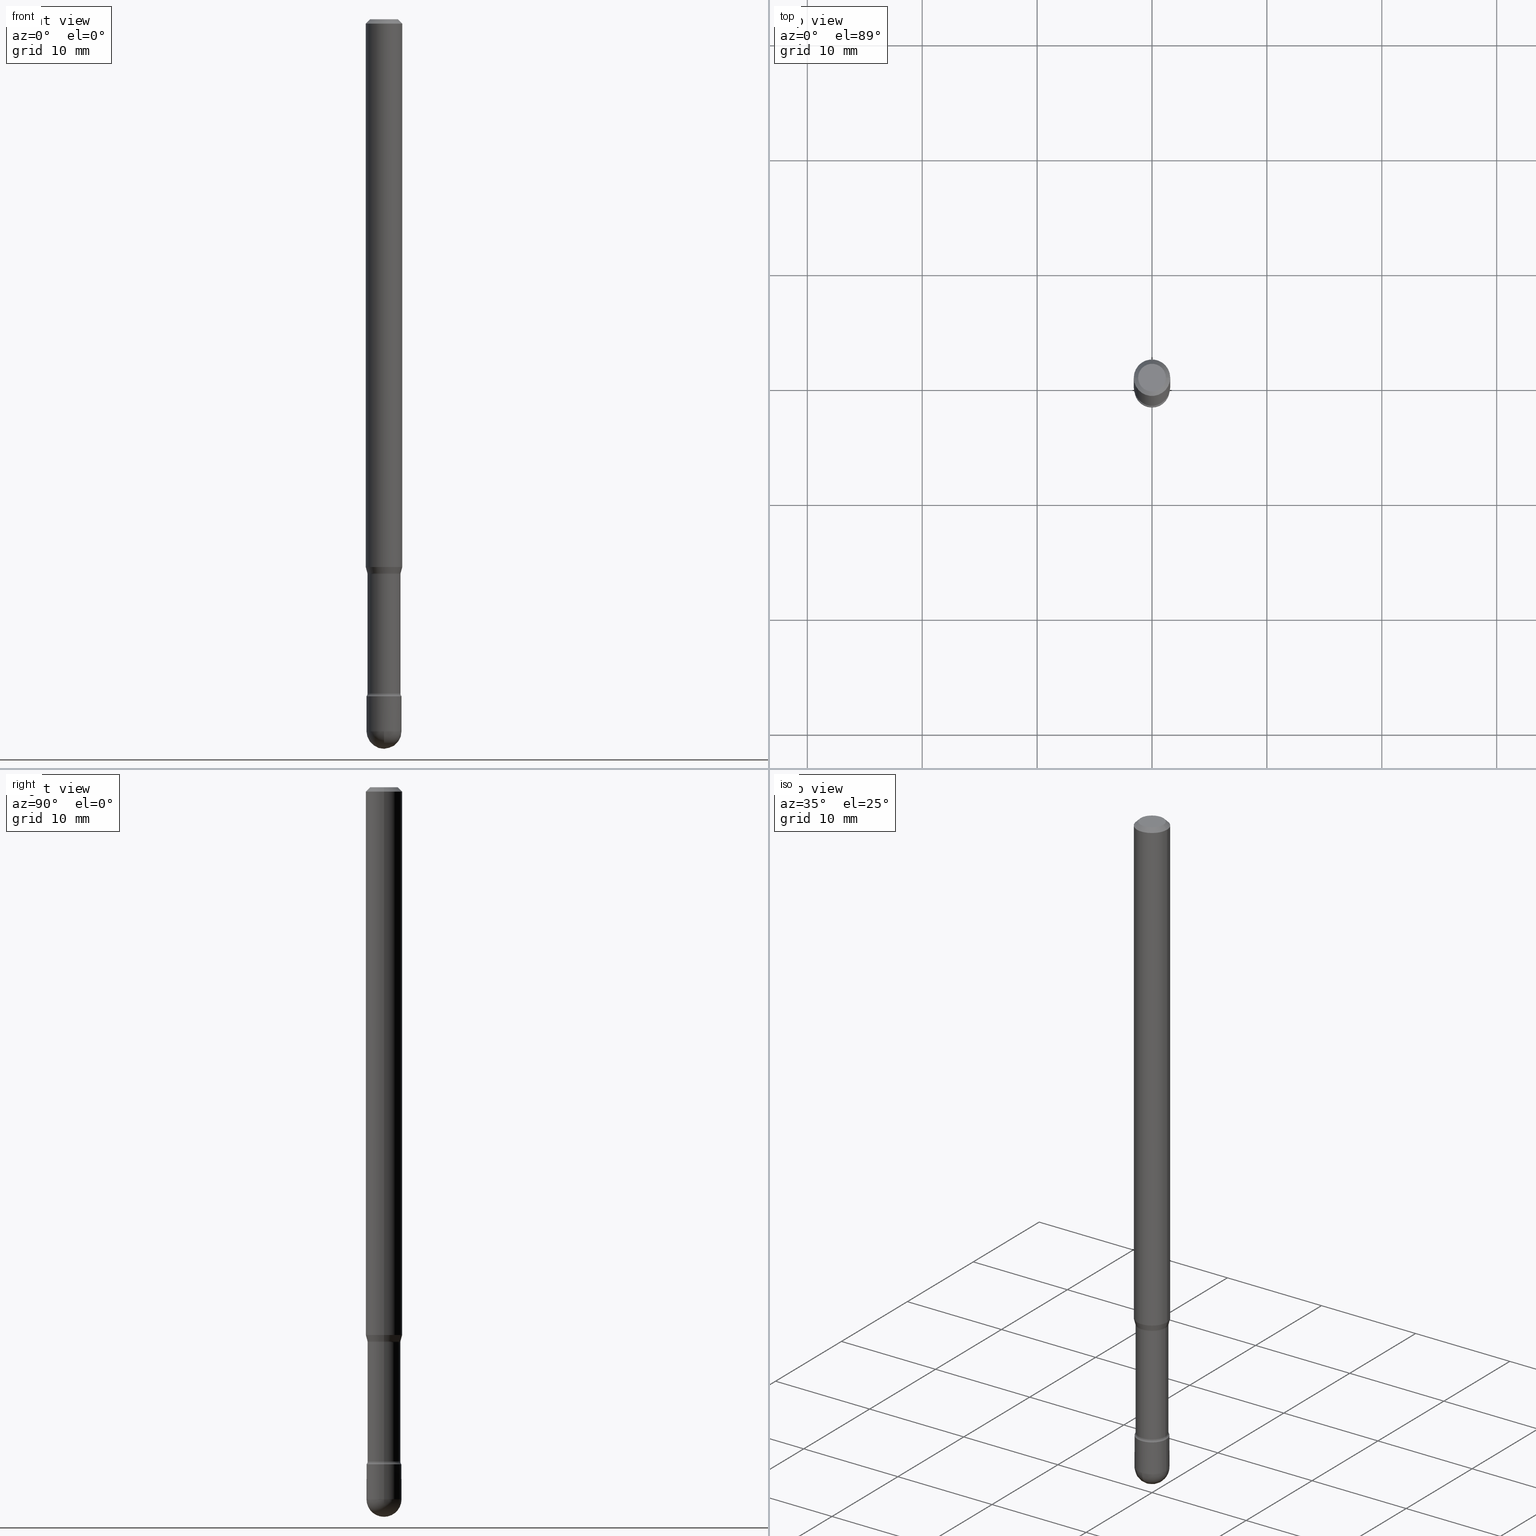
[diagram: canonical four-view strip — front | top / right | iso, engineering-drawing reading convention]
A machine part, canonical four-view strip (front | top / right | iso — engineering-drawing reading convention). The complete STEP part file that produces these views, byte-faithful:
ISO-10303-21;
HEADER;
FILE_DESCRIPTION (( 'STEP AP203' ),
    '1' );
FILE_NAME ('09593.STEP',
    '2024-04-10T01:14:05',
    ( '' ),
    ( '' ),
    'SwSTEP 2.0',
    'SolidWorks 2023',
    '' );
FILE_SCHEMA (( 'CONFIG_CONTROL_DESIGN' ));
ENDSEC;

DATA;
#1 = CYLINDRICAL_SURFACE ( 'NONE', #118, 0.05999999999999999084 ) ;
#2 = AXIS2_PLACEMENT_3D ( 'NONE', #25, #432, #85 ) ;
#3 = LOCAL_TIME ( 21, 14, 5.000000000000000000, #547 ) ;
#4 = CARTESIAN_POINT ( 'NONE',  ( 0.04749999999999999362, -4.035134999187581581E-16, -8.274703207154280181E-17 ) ) ;
#5 = CARTESIAN_POINT ( 'NONE',  ( 5.966943887091733341E-29, -8.519214466777275048E-15, -2.440000000000000391 ) ) ;
#6 = DIRECTION ( 'NONE',  ( -2.445468806185136597E-29, 3.491481338843145583E-15, 1.000000000000000000 ) ) ;
#7 = ADVANCED_FACE ( 'NONE', ( #45 ), #1, .T. ) ;
#8 = APPLICATION_CONTEXT ( 'configuration controlled 3d designs of mechanical parts and assemblies' ) ;
#9 = DIRECTION ( 'NONE',  ( 1.000000000000000000, -6.982962677686271444E-15, 4.883557194083115143E-29 ) ) ;
#10 = DIRECTION ( 'NONE',  ( 1.000000000000000000, -6.982962677686269077E-15, 0.000000000000000000 ) ) ;
#11 = TOROIDAL_SURFACE ( 'NONE', #187, 0.07140000000000003288, 0.01500000000000001506 ) ;
#12 = CARTESIAN_POINT ( 'NONE',  ( -1.169113584055446105E-44, 1.669184350826100908E-30, 4.780733988912460139E-16 ) ) ;
#13 = AXIS2_PLACEMENT_3D ( 'NONE', #223, #405, #478 ) ;
#14 = DIRECTION ( 'NONE',  ( -2.445468806185136877E-29, 3.491481338843145188E-15, 1.000000000000000000 ) ) ;
#15 = VERTEX_POINT ( 'NONE', #137 ) ;
#16 = ADVANCED_FACE ( 'NONE', ( #194 ), #554, .F. ) ;
#17 = DIRECTION ( 'NONE',  ( -2.445468806185136597E-29, 3.491481338843145583E-15, 1.000000000000000000 ) ) ;
#18 = PERSON_AND_ORGANIZATION_ROLE ( 'design_owner' ) ;
#19 = VERTEX_POINT ( 'NONE', #296 ) ;
#20 = ADVANCED_FACE ( 'NONE', ( #472 ), #276, .F. ) ;
#21 = CARTESIAN_POINT ( 'NONE',  ( 5.966943887091733341E-29, -8.519214466777275048E-15, -2.440000000000000391 ) ) ;
#22 = CALENDAR_DATE ( 2024, 9, 4 ) ;
#23 = AXIS2_PLACEMENT_3D ( 'NONE', #127, #295, #316 ) ;
#24 = VECTOR ( 'NONE', #270, 39.37007874015748143 ) ;
#25 = CARTESIAN_POINT ( 'NONE',  ( 3.316907271900976096E-16, 0.04749999999999999362, 3.181781981480094004E-17 ) ) ;
#26 = AXIS2_PLACEMENT_3D ( 'NONE', #402, #42, #356 ) ;
#27 = PERSON_AND_ORGANIZATION ( #358, #90 ) ;
#28 = ORIENTED_EDGE ( 'NONE', *, *, #55, .F. ) ;
#29 = COORDINATED_UNIVERSAL_TIME_OFFSET ( 5, 0, .BEHIND. ) ;
#30 = CC_DESIGN_DATE_AND_TIME_ASSIGNMENT ( #268, #411, ( #428 ) ) ;
#31 = VERTEX_POINT ( 'NONE', #255 ) ;
#32 = CALENDAR_DATE ( 2024, 9, 4 ) ;
#33 = CONICAL_SURFACE ( 'NONE', #506, 0.05691111260566397018, 0.2617993877991514062 ) ;
#34 = CC_DESIGN_APPROVAL ( #190, ( #428 ) ) ;
#35 = ORIENTED_EDGE ( 'NONE', *, *, #519, .T. ) ;
#36 = DIRECTION ( 'NONE',  ( 6.982962677686265922E-15, 1.000000000000000000, -4.553079989440442247E-15 ) ) ;
#37 = CARTESIAN_POINT ( 'NONE',  ( 0.05999999999999999084, -4.189777606611759435E-16, 2.925706065477561055E-30 ) ) ;
#38 = ORIENTED_EDGE ( 'NONE', *, *, #353, .T. ) ;
#39 = ORIENTED_EDGE ( 'NONE', *, *, #355, .T. ) ;
#40 = CIRCLE ( 'NONE', #107, 0.06250000000000000000 ) ;
#41 = VECTOR ( 'NONE', #71, 39.37007874015748143 ) ;
#42 = DIRECTION ( 'NONE',  ( 1.000000000000000000, -6.982962677686265922E-15, 4.883557194083112340E-29 ) ) ;
#43 = CC_DESIGN_PERSON_AND_ORGANIZATION_ASSIGNMENT ( #366, #492, ( #423 ) ) ;
#44 = DIRECTION ( 'NONE',  ( 1.000000000000000000, -6.982962677686261977E-15, 0.000000000000000000 ) ) ;
#45 = FACE_OUTER_BOUND ( 'NONE', #426, .T. ) ;
#46 = CARTESIAN_POINT ( 'NONE',  ( 4.641726004374682613E-29, -6.627154549388364967E-15, -1.898092501787273401 ) ) ;
#47 = CIRCLE ( 'NONE', #363, 0.04749999999999999362 ) ;
#48 = ADVANCED_FACE ( 'NONE', ( #346 ), #191, .F. ) ;
#49 = DIRECTION ( 'NONE',  ( 1.000000000000000000, -6.982962677686271444E-15, 4.883557194083115143E-29 ) ) ;
#50 =( LENGTH_UNIT ( ) NAMED_UNIT ( * ) SI_UNIT ( $, .METRE. ) );
#51 = CARTESIAN_POINT ( 'NONE',  ( 0.05640000000000000568, -3.938390950215037776E-16, 4.780733988912487749E-16 ) ) ;
#52 = CARTESIAN_POINT ( 'NONE',  ( 5.649647131350973229E-29, -8.066198791933100712E-15, -2.310251153914436806 ) ) ;
#53 = CARTESIAN_POINT ( 'NONE',  ( -1.169113584055446105E-44, 1.669184350826100908E-30, 4.780733988912460139E-16 ) ) ;
#54 = CARTESIAN_POINT ( 'NONE',  ( -0.05999999999999999084, 4.263256414560600464E-16, -2.951361054152942712E-30 ) ) ;
#55 = EDGE_CURVE ( 'NONE', #410, #445, #47, .T. ) ;
#56 = DIRECTION ( 'NONE',  ( -2.445468806185136597E-29, 3.491481338843145583E-15, 1.000000000000000000 ) ) ;
#57 = AXIS2_PLACEMENT_3D ( 'NONE', #398, #174, #9 ) ;
#58 = AXIS2_PLACEMENT_3D ( 'NONE', #336, #202, #267 ) ;
#59 = CARTESIAN_POINT ( 'NONE',  ( 5.673487630349517039E-29, -8.100236706116099992E-15, -2.320000000000000284 ) ) ;
#60 = ADVANCED_FACE ( 'NONE', ( #135 ), #33, .T. ) ;
#61 = DATE_AND_TIME ( #185, #477 ) ;
#62 = CARTESIAN_POINT ( 'NONE',  ( -1.169113584055446105E-44, 1.669184350826100908E-30, 4.780733988912460139E-16 ) ) ;
#63 = PERSON_AND_ORGANIZATION ( #358, #90 ) ;
#64 = ORIENTED_EDGE ( 'NONE', *, *, #503, .T. ) ;
#65 = CYLINDRICAL_SURFACE ( 'NONE', #415, 0.05640000000000000568 ) ;
#66 = CLOSED_SHELL ( 'NONE', ( #7, #112, #382, #179, #545 ) ) ;
#67 = CIRCLE ( 'NONE', #265, 0.05640000000000001262 ) ;
#68 = EDGE_CURVE ( 'NONE', #19, #114, #40, .T. ) ;
#69 = APPROVAL_ROLE ( '' ) ;
#70 = VERTEX_POINT ( 'NONE', #474 ) ;
#71 = DIRECTION ( 'NONE',  ( -2.445468806185136877E-29, 3.491481338843145188E-15, 1.000000000000000000 ) ) ;
#72 = CARTESIAN_POINT ( 'NONE',  ( 2.023552857353652888E-45, -2.889097183224559242E-31, -8.274703207154537794E-17 ) ) ;
#73 = APPROVAL_ROLE ( '' ) ;
#74 = ORIENTED_EDGE ( 'NONE', *, *, #455, .F. ) ;
#75 = ORIENTED_EDGE ( 'NONE', *, *, #309, .F. ) ;
#76 = VERTEX_POINT ( 'NONE', #168 ) ;
#77 = CIRCLE ( 'NONE', #373, 0.05691111260566397018 ) ;
#78 = ORIENTED_EDGE ( 'NONE', *, *, #385, .T. ) ;
#79 = FACE_OUTER_BOUND ( 'NONE', #534, .T. ) ;
#80 = ADVANCED_FACE ( 'NONE', ( #122 ), #442, .T. ) ;
#81 = DIRECTION ( 'NONE',  ( -2.445468806185136597E-29, 3.491481338843145583E-15, 1.000000000000000000 ) ) ;
#82 = EDGE_LOOP ( 'NONE', ( #376, #513, #64, #487 ) ) ;
#83 = VERTEX_POINT ( 'NONE', #252 ) ;
#84 =( GEOMETRIC_REPRESENTATION_CONTEXT ( 3 ) GLOBAL_UNCERTAINTY_ASSIGNED_CONTEXT ( ( #401 ) ) GLOBAL_UNIT_ASSIGNED_CONTEXT ( ( #542, #454, #314 ) ) REPRESENTATION_CONTEXT ( 'NONE', 'WORKASPACE' ) );
#85 = DIRECTION ( 'NONE',  ( -1.000000000000000000, 6.982962677686265922E-15, -4.876176775795935793E-29 ) ) ;
#86 = EDGE_LOOP ( 'NONE', ( #35, #38, #447, #433 ) ) ;
#87 = CARTESIAN_POINT ( 'NONE',  ( 3.668203209277725232E-31, -5.237222008264747365E-17, -0.01500000000000008271 ) ) ;
#88 = EDGE_CURVE ( 'NONE', #70, #31, #204, .T. ) ;
#89 = LINE ( 'NONE', #166, #341 ) ;
#90 = ORGANIZATION ( 'UNSPECIFIED', 'UNSPECIFIED', '' ) ;
#91 = PLANE ( 'NONE',  #510 ) ;
#92 = CARTESIAN_POINT ( 'NONE',  ( -0.06000000000000001166, -7.883399944990627819E-15, -2.320000000000000284 ) ) ;
#93 = ORIENTED_EDGE ( 'NONE', *, *, #555, .F. ) ;
#94 = DIRECTION ( 'NONE',  ( 1.000000000000000000, -6.982962677686265922E-15, 4.839830652673569521E-29 ) ) ;
#95 = DIRECTION ( 'NONE',  ( -1.000000000000000000, 7.105427357600982137E-15, 0.000000000000000000 ) ) ;
#96 = EDGE_CURVE ( 'NONE', #412, #552, #302, .T. ) ;
#97 = ORIENTED_EDGE ( 'NONE', *, *, #448, .F. ) ;
#98 = CIRCLE ( 'NONE', #422, 0.05640000000000001262 ) ;
#99 = PERSON_AND_ORGANIZATION_ROLE ( 'creator' ) ;
#100 = ORIENTED_EDGE ( 'NONE', *, *, #527, .T. ) ;
#101 = DATE_AND_TIME ( #188, #192 ) ;
#102 = PRODUCT_DEFINITION_SHAPE ( 'NONE', 'NONE',  #428 ) ;
#103 = EDGE_LOOP ( 'NONE', ( #106, #159 ) ) ;
#104 = EDGE_CURVE ( 'NONE', #445, #410, #160, .T. ) ;
#105 = PERSON_AND_ORGANIZATION ( #358, #90 ) ;
#106 = ORIENTED_EDGE ( 'NONE', *, *, #413, .F. ) ;
#107 = AXIS2_PLACEMENT_3D ( 'NONE', #244, #390, #291 ) ;
#108 = CIRCLE ( 'NONE', #431, 0.05999999999999999778 ) ;
#109 = ORIENTED_EDGE ( 'NONE', *, *, #248, .T. ) ;
#110 = CARTESIAN_POINT ( 'NONE',  ( 3.668203209277725232E-31, -5.237222008264747365E-17, -0.01500000000000008271 ) ) ;
#111 = LINE ( 'NONE', #37, #277 ) ;
#112 = ADVANCED_FACE ( 'NONE', ( #514 ), #250, .T. ) ;
#113 = CIRCLE ( 'NONE', #143, 0.01500000000000001853 ) ;
#114 = VERTEX_POINT ( 'NONE', #517 ) ;
#115 = ORIENTED_EDGE ( 'NONE', *, *, #273, .T. ) ;
#116 = ADVANCED_FACE ( 'NONE', ( #541 ), #490, .F. ) ;
#117 = CARTESIAN_POINT ( 'NONE',  ( -0.07139999999999999125, -6.133381964047343886E-15, -1.901974787463811323 ) ) ;
#118 = AXIS2_PLACEMENT_3D ( 'NONE', #123, #294, #564 ) ;
#119 = CIRCLE ( 'NONE', #300, 0.06250000000000000000 ) ;
#120 = ORIENTED_EDGE ( 'NONE', *, *, #455, .T. ) ;
#121 = DIRECTION ( 'NONE',  ( -2.445468806185136877E-29, 3.491481338843145188E-15, 1.000000000000000000 ) ) ;
#122 = FACE_OUTER_BOUND ( 'NONE', #556, .T. ) ;
#123 = CARTESIAN_POINT ( 'NONE',  ( 0.000000000000000000, 0.000000000000000000, 0.000000000000000000 ) ) ;
#124 = DIRECTION ( 'NONE',  ( -2.445468806185136597E-29, 3.491481338843145583E-15, 1.000000000000000000 ) ) ;
#125 = CARTESIAN_POINT ( 'NONE',  ( 5.673487630349517039E-29, -8.100236706116099992E-15, -2.320000000000000284 ) ) ;
#126 = FACE_OUTER_BOUND ( 'NONE', #561, .T. ) ;
#127 = CARTESIAN_POINT ( 'NONE',  ( 5.966943887091733341E-29, -8.519214466777275048E-15, -2.440000000000000391 ) ) ;
#128 = DIRECTION ( 'NONE',  ( -1.000000000000000000, 7.105427357601001070E-15, -4.926315508542082329E-29 ) ) ;
#129 = DIRECTION ( 'NONE',  ( 1.000000000000000000, -6.982962677686259611E-15, 0.000000000000000000 ) ) ;
#130 = AXIS2_PLACEMENT_3D ( 'NONE', #172, #124, #343 ) ;
#131 = AXIS2_PLACEMENT_3D ( 'NONE', #543, #258, #409 ) ;
#132 = FACE_OUTER_BOUND ( 'NONE', #86, .T. ) ;
#133 = DIRECTION ( 'NONE',  ( 7.105427357601001859E-15, 1.000000000000000000, -3.491481338843145583E-15 ) ) ;
#134 = DIRECTION ( 'NONE',  ( -2.445468806185136597E-29, 3.491481338843145583E-15, 1.000000000000000000 ) ) ;
#135 = FACE_OUTER_BOUND ( 'NONE', #282, .T. ) ;
#136 = CARTESIAN_POINT ( 'NONE',  ( -0.05999999999999999778, -7.673911064660039502E-15, -2.320000000000000284 ) ) ;
#137 = CARTESIAN_POINT ( 'NONE',  ( -0.05639999999999999181, -6.952708031687881193E-15, -1.901974787463811323 ) ) ;
#138 = ORIENTED_EDGE ( 'NONE', *, *, #362, .T. ) ;
#139 = APPROVAL_STATUS ( 'not_yet_approved' ) ;
#140 = EDGE_CURVE ( 'NONE', #445, #19, #222, .T. ) ;
#141 = CARTESIAN_POINT ( 'NONE',  ( -0.06250000000000000000, 3.840629472727441958E-16, -0.01500000000000008271 ) ) ;
#142 = CIRCLE ( 'NONE', #254, 0.01500000000000003587 ) ;
#143 = AXIS2_PLACEMENT_3D ( 'NONE', #520, #262, #129 ) ;
#144 = COORDINATED_UNIVERSAL_TIME_OFFSET ( 5, 0, .BEHIND. ) ;
#145 = EDGE_CURVE ( 'NONE', #372, #269, #209, .T. ) ;
#146 = COORDINATED_UNIVERSAL_TIME_OFFSET ( 5, 0, .BEHIND. ) ;
#147 = DATE_AND_TIME ( #368, #485 ) ;
#148 = ORIENTED_EDGE ( 'NONE', *, *, #104, .F. ) ;
#149 = VECTOR ( 'NONE', #169, 39.37007874015748854 ) ;
#150 = CIRCLE ( 'NONE', #466, 0.01500000000000001853 ) ;
#151 = APPROVAL_DATE_TIME ( #232, #479 ) ;
#152 = EDGE_LOOP ( 'NONE', ( #266, #239, #39, #157 ) ) ;
#153 = ADVANCED_FACE ( 'NONE', ( #407 ), #440, .T. ) ;
#154 = ORIENTED_EDGE ( 'NONE', *, *, #406, .T. ) ;
#155 = CARTESIAN_POINT ( 'NONE',  ( 4.189777606612326922E-16, 0.05999999999999190009, -2.320000000000000728 ) ) ;
#156 = ADVANCED_FACE ( 'NONE', ( #132 ), #307, .T. ) ;
#157 = ORIENTED_EDGE ( 'NONE', *, *, #509, .F. ) ;
#158 = DIRECTION ( 'NONE',  ( -2.445468806185136597E-29, 3.491481338843145583E-15, 1.000000000000000000 ) ) ;
#159 = ORIENTED_EDGE ( 'NONE', *, *, #424, .F. ) ;
#160 = CIRCLE ( 'NONE', #130, 0.04749999999999999362 ) ;
#161 = ORIENTED_EDGE ( 'NONE', *, *, #339, .F. ) ;
#162 = CC_DESIGN_PERSON_AND_ORGANIZATION_ASSIGNMENT ( #486, #419, ( #221 ) ) ;
#163 = EDGE_LOOP ( 'NONE', ( #281, #521, #75, #199 ) ) ;
#164 = CARTESIAN_POINT ( 'NONE',  ( -0.05691111260566397018, -6.222776772928569104E-15, -1.898092501787273401 ) ) ;
#165 = CIRCLE ( 'NONE', #299, 0.05999999999999999778 ) ;
#166 = CARTESIAN_POINT ( 'NONE',  ( 0.05691111260566397018, -7.024562724659316419E-15, -1.898092501787273401 ) ) ;
#167 = CIRCLE ( 'NONE', #539, 0.01500000000000003587 ) ;
#168 = CARTESIAN_POINT ( 'NONE',  ( 0.05999999999999999778, -8.519214466777275048E-15, -2.320000000000000284 ) ) ;
#169 = DIRECTION ( 'NONE',  ( -0.2588190451025226269, 5.211531920934557353E-15, 0.9659258262890676461 ) ) ;
#170 = LINE ( 'NONE', #54, #435 ) ;
#171 = LINE ( 'NONE', #347, #334 ) ;
#172 = CARTESIAN_POINT ( 'NONE',  ( 2.023552857353652888E-45, -2.889097183224559242E-31, -8.274703207154537794E-17 ) ) ;
#173 = MANIFOLD_SOLID_BREP ( 'Body-Move/Copy2[2]', #220 ) ;
#174 = DIRECTION ( 'NONE',  ( -2.445468806185136597E-29, 3.491481338843145583E-15, 1.000000000000000000 ) ) ;
#175 = CARTESIAN_POINT ( 'NONE',  ( -4.263256414560001423E-16, -0.06000000000000849792, -2.439999999999999947 ) ) ;
#176 = CARTESIAN_POINT ( 'NONE',  ( -0.04749999999999999362, 3.578768372314208041E-16, -8.274703207154778150E-17 ) ) ;
#177 = AXIS2_PLACEMENT_3D ( 'NONE', #46, #305, #216 ) ;
#178 = EDGE_LOOP ( 'NONE', ( #229, #333, #489, #417 ) ) ;
#179 = ADVANCED_FACE ( 'NONE', ( #532 ), #238, .T. ) ;
#180 = CYLINDRICAL_SURFACE ( 'NONE', #311, 0.05999999999999999084 ) ;
#181 = MECHANICAL_CONTEXT ( 'NONE', #8, 'mechanical' ) ;
#182 = CARTESIAN_POINT ( 'NONE',  ( -0.05999999999999999084, -7.883399944990627819E-15, -2.440000000000000391 ) ) ;
#183 = ORIENTED_EDGE ( 'NONE', *, *, #362, .F. ) ;
#184 = ADVANCED_FACE ( 'NONE', ( #461 ), #288, .T. ) ;
#185 = CALENDAR_DATE ( 2024, 9, 4 ) ;
#186 = ORIENTED_EDGE ( 'NONE', *, *, #345, .T. ) ;
#187 = AXIS2_PLACEMENT_3D ( 'NONE', #278, #158, #320 ) ;
#188 = CALENDAR_DATE ( 2024, 9, 4 ) ;
#189 = DIMENSIONAL_EXPONENTS ( 1.000000000000000000, 0.000000000000000000, 0.000000000000000000, 0.000000000000000000, 0.000000000000000000, 0.000000000000000000, 0.000000000000000000 ) ;
#190 = APPROVAL ( #139, 'UNSPECIFIED' ) ;
#191 = TOROIDAL_SURFACE ( 'NONE', #508, 0.07140000000000003288, 0.01500000000000001506 ) ;
#192 = LOCAL_TIME ( 21, 14, 5.000000000000000000, #144 ) ;
#193 = EDGE_LOOP ( 'NONE', ( #400, #292, #505, #500 ) ) ;
#194 = FACE_OUTER_BOUND ( 'NONE', #103, .T. ) ;
#195 = EDGE_CURVE ( 'NONE', #420, #70, #98, .T. ) ;
#196 = ORIENTED_EDGE ( 'NONE', *, *, #208, .F. ) ;
#197 = DIRECTION ( 'NONE',  ( 1.000000000000000000, -6.982962677686270655E-15, 4.883557194083115143E-29 ) ) ;
#198 = ADVANCED_FACE ( 'NONE', ( #272 ), #65, .T. ) ;
#199 = ORIENTED_EDGE ( 'NONE', *, *, #385, .F. ) ;
#200 = CIRCLE ( 'NONE', #403, 0.06250000000000000000 ) ;
#201 = AXIS2_PLACEMENT_3D ( 'NONE', #303, #399, #10 ) ;
#202 = DIRECTION ( 'NONE',  ( -2.445468806185136597E-29, 3.491481338843145583E-15, 1.000000000000000000 ) ) ;
#203 = APPLICATION_CONTEXT ( 'configuration controlled 3d designs of mechanical parts and assemblies' ) ;
#204 = LINE ( 'NONE', #51, #384 ) ;
#205 = DIRECTION ( 'NONE',  ( 7.105427357601001859E-15, 1.000000000000000000, -3.491481338843145583E-15 ) ) ;
#206 = ADVANCED_FACE ( 'NONE', ( #313 ), #558, .T. ) ;
#207 = DIRECTION ( 'NONE',  ( -2.445468806185136597E-29, 3.491481338843145583E-15, 1.000000000000000000 ) ) ;
#208 = EDGE_CURVE ( 'NONE', #396, #462, #165, .T. ) ;
#209 = CIRCLE ( 'NONE', #451, 0.05999999999999999084 ) ;
#210 = CARTESIAN_POINT ( 'NONE',  ( -0.05691111260566397018, -6.166508376902006345E-15, -1.898092501787273401 ) ) ;
#211 = CIRCLE ( 'NONE', #131, 0.05639999999999999181 ) ;
#212 = DIRECTION ( 'NONE',  ( -2.445468806185136597E-29, 3.491481338843145583E-15, 1.000000000000000000 ) ) ;
#213 = CARTESIAN_POINT ( 'NONE',  ( 3.668203209277725232E-31, -5.237222008264747365E-17, -0.01500000000000008271 ) ) ;
#214 = DIRECTION ( 'NONE',  ( -2.445468806185136597E-29, 3.491481338843145583E-15, 1.000000000000000000 ) ) ;
#215 = DIRECTION ( 'NONE',  ( 1.000000000000000000, -6.982962677686265922E-15, 4.876176775795935793E-29 ) ) ;
#216 = DIRECTION ( 'NONE',  ( 1.000000000000000000, -6.982962677686261977E-15, 0.000000000000000000 ) ) ;
#217 = EDGE_CURVE ( 'NONE', #241, #19, #498, .T. ) ;
#218 = DIRECTION ( 'NONE',  ( 1.000000000000000000, -6.982962677686266711E-15, 4.852736867747366207E-29 ) ) ;
#219 = DIRECTION ( 'NONE',  ( -6.982962677686266711E-15, -1.000000000000000000, 3.491481338843145583E-15 ) ) ;
#220 = CLOSED_SHELL ( 'NONE', ( #20, #290, #279, #206, #156, #60, #184, #153, #80, #116, #16, #48, #198, #249 ) ) ;
#221 = PRODUCT_DEFINITION_FORMATION_WITH_SPECIFIED_SOURCE ( 'ANY', '', #537, .NOT_KNOWN. ) ;
#222 = LINE ( 'NONE', #357, #430 ) ;
#223 = CARTESIAN_POINT ( 'NONE',  ( 4.590718387370413203E-29, -6.554329190725506201E-15, -1.877234490073830253 ) ) ;
#224 = ORIENTED_EDGE ( 'NONE', *, *, #392, .T. ) ;
#225 = LINE ( 'NONE', #141, #24 ) ;
#226 = PERSON_AND_ORGANIZATION ( #358, #90 ) ;
#227 = CARTESIAN_POINT ( 'NONE',  ( 5.649647131350973229E-29, -8.066198791933100712E-15, -2.310251153914436806 ) ) ;
#228 = COORDINATED_UNIVERSAL_TIME_OFFSET ( 5, 0, .BEHIND. ) ;
#229 = ORIENTED_EDGE ( 'NONE', *, *, #242, .F. ) ;
#230 = AXIS2_PLACEMENT_3D ( 'NONE', #383, #335, #488 ) ;
#231 = ORIENTED_EDGE ( 'NONE', *, *, #96, .T. ) ;
#232 = DATE_AND_TIME ( #32, #3 ) ;
#233 = PRODUCT_RELATED_PRODUCT_CATEGORY ( 'detail', '', ( #537 ) ) ;
#234 = CARTESIAN_POINT ( 'NONE',  ( 6.116237514330379097E-29, -8.725029406710421437E-15, -2.500000000000000000 ) ) ;
#235 = ORIENTED_EDGE ( 'NONE', *, *, #424, .T. ) ;
#236 = AXIS2_PLACEMENT_3D ( 'NONE', #5, #128, #544 ) ;
#237 = APPROVAL_PERSON_ORGANIZATION ( #280, #479, #73 ) ;
#238 = SPHERICAL_SURFACE ( 'NONE', #475, 0.05999999999999994921 ) ;
#239 = ORIENTED_EDGE ( 'NONE', *, *, #298, .T. ) ;
#240 = DIRECTION ( 'NONE',  ( -1.000000000000000000, 6.982962677686266711E-15, 0.000000000000000000 ) ) ;
#241 = VERTEX_POINT ( 'NONE', #253 ) ;
#242 = EDGE_CURVE ( 'NONE', #306, #372, #284, .T. ) ;
#243 = ORIENTED_EDGE ( 'NONE', *, *, #283, .F. ) ;
#244 = CARTESIAN_POINT ( 'NONE',  ( 3.668203209277725232E-31, -5.237222008264747365E-17, -0.01500000000000008271 ) ) ;
#245 = DIRECTION ( 'NONE',  ( -2.445468806185136597E-29, 3.491481338843145583E-15, 1.000000000000000000 ) ) ;
#246 = AXIS2_PLACEMENT_3D ( 'NONE', #529, #214, #515 ) ;
#247 = AXIS2_PLACEMENT_3D ( 'NONE', #125, #395, #473 ) ;
#248 = EDGE_CURVE ( 'NONE', #114, #19, #200, .T. ) ;
#249 = ADVANCED_FACE ( 'NONE', ( #439 ), #349, .F. ) ;
#250 = SPHERICAL_SURFACE ( 'NONE', #23, 0.05999999999999994921 ) ;
#251 = DIRECTION ( 'NONE',  ( 1.000000000000000000, -6.982962677686259611E-15, 0.000000000000000000 ) ) ;
#252 = CARTESIAN_POINT ( 'NONE',  ( 0.05691111260566397018, -7.024562724659316419E-15, -1.898092501787273401 ) ) ;
#253 = CARTESIAN_POINT ( 'NONE',  ( 0.06250000000000000000, -6.990764358080897871E-15, -1.877234490073830253 ) ) ;
#254 = AXIS2_PLACEMENT_3D ( 'NONE', #117, #205, #388 ) ;
#255 = CARTESIAN_POINT ( 'NONE',  ( 0.05639999999999999181, -7.034548572401560169E-15, -1.901974787463811323 ) ) ;
#256 = CARTESIAN_POINT ( 'NONE',  ( 5.966943887091733341E-29, -8.519214466777275048E-15, -2.440000000000000391 ) ) ;
#257 = CIRCLE ( 'NONE', #289, 0.05999999999999999778 ) ;
#258 = DIRECTION ( 'NONE',  ( -2.445468806185136597E-29, 3.491481338843145583E-15, 1.000000000000000000 ) ) ;
#259 = CC_DESIGN_PERSON_AND_ORGANIZATION_ASSIGNMENT ( #27, #308, ( #221 ) ) ;
#260 = LENGTH_MEASURE_WITH_UNIT ( LENGTH_MEASURE( 0.02539999999999999897 ), #50 );
#261 = ORIENTED_EDGE ( 'NONE', *, *, #499, .T. ) ;
#262 = DIRECTION ( 'NONE',  ( -6.982962677686266711E-15, -1.000000000000000000, 3.491481338843145583E-15 ) ) ;
#263 = DIRECTION ( 'NONE',  ( -2.445468806185136877E-29, 3.491481338843145188E-15, 1.000000000000000000 ) ) ;
#264 = CARTESIAN_POINT ( 'NONE',  ( 0.000000000000000000, 0.000000000000000000, 0.000000000000000000 ) ) ;
#265 = AXIS2_PLACEMENT_3D ( 'NONE', #52, #397, #251 ) ;
#266 = ORIENTED_EDGE ( 'NONE', *, *, #392, .F. ) ;
#267 = DIRECTION ( 'NONE',  ( 1.000000000000000000, -6.982962677686269077E-15, 0.000000000000000000 ) ) ;
#268 = DATE_AND_TIME ( #22, #394 ) ;
#269 = VERTEX_POINT ( 'NONE', #348 ) ;
#270 = DIRECTION ( 'NONE',  ( -0.7071067811865475727, 2.468850131082257455E-15, -0.7071067811865474617 ) ) ;
#271 = EDGE_LOOP ( 'NONE', ( #536, #243, #365, #115 ) ) ;
#272 = FACE_OUTER_BOUND ( 'NONE', #193, .T. ) ;
#273 = EDGE_CURVE ( 'NONE', #31, #15, #310, .T. ) ;
#274 = PERSON_AND_ORGANIZATION ( #358, #90 ) ;
#275 = ORIENTED_EDGE ( 'NONE', *, *, #309, .T. ) ;
#276 = TOROIDAL_SURFACE ( 'NONE', #516, 0.07139999999999999125, 0.01500000000000002720 ) ;
#277 = VECTOR ( 'NONE', #374, 39.37007874015748143 ) ;
#278 = CARTESIAN_POINT ( 'NONE',  ( 5.649647131350973229E-29, -8.066198791933102290E-15, -2.310251153914437250 ) ) ;
#279 = ADVANCED_FACE ( 'NONE', ( #79 ), #11, .F. ) ;
#280 = PERSON_AND_ORGANIZATION ( #358, #90 ) ;
#281 = ORIENTED_EDGE ( 'NONE', *, *, #380, .F. ) ;
#282 = EDGE_LOOP ( 'NONE', ( #481, #231, #501, #93 ) ) ;
#283 = EDGE_CURVE ( 'NONE', #83, #412, #77, .T. ) ;
#284 = CIRCLE ( 'NONE', #236, 0.05999999999999994921 ) ;
#285 = CC_DESIGN_SECURITY_CLASSIFICATION ( #423, ( #221 ) ) ;
#286 = EDGE_LOOP ( 'NONE', ( #337, #224, #553, #183 ) ) ;
#287 = ORIENTED_EDGE ( 'NONE', *, *, #448, .T. ) ;
#288 = CONICAL_SURFACE ( 'NONE', #230, 0.05691111260566397018, 0.2617993877991514062 ) ;
#289 = AXIS2_PLACEMENT_3D ( 'NONE', #59, #6, #482 ) ;
#290 = ADVANCED_FACE ( 'NONE', ( #126 ), #378, .T. ) ;
#291 = DIRECTION ( 'NONE',  ( 1.000000000000000000, -6.982962677686266711E-15, 0.000000000000000000 ) ) ;
#292 = ORIENTED_EDGE ( 'NONE', *, *, #195, .T. ) ;
#293 = DIRECTION ( 'NONE',  ( 1.000000000000000000, -6.982962677686269077E-15, 0.000000000000000000 ) ) ;
#294 = DIRECTION ( 'NONE',  ( -2.445468806185136597E-29, 3.491481338843145583E-15, 1.000000000000000000 ) ) ;
#295 = DIRECTION ( 'NONE',  ( -1.000000000000000000, 6.982962677686265922E-15, -4.883557194083113462E-29 ) ) ;
#296 = CARTESIAN_POINT ( 'NONE',  ( 0.06250000000000000000, -4.888073874380391431E-16, -0.01500000000000008271 ) ) ;
#297 = DIRECTION ( 'NONE',  ( 1.000000000000000000, -6.982962677686266711E-15, 4.876176775795935793E-29 ) ) ;
#298 = EDGE_CURVE ( 'NONE', #412, #15, #142, .T. ) ;
#299 = AXIS2_PLACEMENT_3D ( 'NONE', #551, #324, #421 ) ;
#300 = AXIS2_PLACEMENT_3D ( 'NONE', #304, #81, #563 ) ;
#301 = DIRECTION ( 'NONE',  ( 1.000000000000000000, -6.982962677686251722E-15, 0.000000000000000000 ) ) ;
#302 = LINE ( 'NONE', #164, #149 ) ;
#303 = CARTESIAN_POINT ( 'NONE',  ( 5.966943887091733341E-29, -8.519214466777275048E-15, -2.440000000000000391 ) ) ;
#304 = CARTESIAN_POINT ( 'NONE',  ( 4.590718387370413203E-29, -6.554329190725506201E-15, -1.877234490073830253 ) ) ;
#305 = DIRECTION ( 'NONE',  ( -2.445468806185136597E-29, 3.491481338843145583E-15, 1.000000000000000000 ) ) ;
#306 = VERTEX_POINT ( 'NONE', #234 ) ;
#307 = CYLINDRICAL_SURFACE ( 'NONE', #340, 0.06250000000000000000 ) ;
#308 = PERSON_AND_ORGANIZATION_ROLE ( 'creator' ) ;
#309 = EDGE_CURVE ( 'NONE', #360, #372, #375, .T. ) ;
#310 = CIRCLE ( 'NONE', #246, 0.05639999999999999181 ) ;
#311 = AXIS2_PLACEMENT_3D ( 'NONE', #264, #444, #297 ) ;
#312 = ORIENTED_EDGE ( 'NONE', *, *, #140, .T. ) ;
#313 = FACE_OUTER_BOUND ( 'NONE', #338, .T. ) ;
#314 =( NAMED_UNIT ( * ) SI_UNIT ( $, .STERADIAN. ) SOLID_ANGLE_UNIT ( ) );
#315 = ORIENTED_EDGE ( 'NONE', *, *, #503, .F. ) ;
#316 = DIRECTION ( 'NONE',  ( 6.982962677686265922E-15, 1.000000000000000000, -4.553079989440442247E-15 ) ) ;
#317 = CC_DESIGN_DATE_AND_TIME_ASSIGNMENT ( #147, #494, ( #423 ) ) ;
#318 = CARTESIAN_POINT ( 'NONE',  ( 4.641726004374682613E-29, -6.627154549388364967E-15, -1.898092501787273401 ) ) ;
#319 = DIRECTION ( 'NONE',  ( 1.000000000000000000, 0.000000000000000000, 0.000000000000000000 ) ) ;
#320 = DIRECTION ( 'NONE',  ( 1.000000000000000000, -6.982962677686270655E-15, 4.883557194083115143E-29 ) ) ;
#321 = AXIS2_PLACEMENT_3D ( 'NONE', #256, #342, #293 ) ;
#322 = ORIENTED_EDGE ( 'NONE', *, *, #88, .F. ) ;
#323 = SHAPE_DEFINITION_REPRESENTATION ( #102, #458 ) ;
#324 = DIRECTION ( 'NONE',  ( -2.445468806185136597E-29, 3.491481338843145583E-15, 1.000000000000000000 ) ) ;
#325 = ORIENTED_EDGE ( 'NONE', *, *, #217, .T. ) ;
#326 = DIRECTION ( 'NONE',  ( -2.445468806185136597E-29, 3.491481338843145583E-15, 1.000000000000000000 ) ) ;
#327 = ORIENTED_EDGE ( 'NONE', *, *, #140, .F. ) ;
#328 = DIRECTION ( 'NONE',  ( -2.438088387897960049E-29, 3.491481338843145188E-15, 1.000000000000000000 ) ) ;
#329 = CARTESIAN_POINT ( 'NONE',  ( 5.649647131350973229E-29, -8.066198791933102290E-15, -2.310251153914437250 ) ) ;
#330 = DIRECTION ( 'NONE',  ( -1.000000000000000000, 6.982962677686265922E-15, -4.883557194083113462E-29 ) ) ;
#331 = ORIENTED_EDGE ( 'NONE', *, *, #273, .F. ) ;
#332 = AXIS2_PLACEMENT_3D ( 'NONE', #87, #429, #437 ) ;
#333 = ORIENTED_EDGE ( 'NONE', *, *, #380, .T. ) ;
#334 = VECTOR ( 'NONE', #14, 39.37007874015748143 ) ;
#335 = DIRECTION ( 'NONE',  ( -2.445468806185136597E-29, 3.491481338843145583E-15, 1.000000000000000000 ) ) ;
#336 = CARTESIAN_POINT ( 'NONE',  ( 5.966943887091733341E-29, -8.519214466777275048E-15, -2.440000000000000391 ) ) ;
#337 = ORIENTED_EDGE ( 'NONE', *, *, #96, .F. ) ;
#338 = EDGE_LOOP ( 'NONE', ( #148, #312, #546, #161 ) ) ;
#339 = EDGE_CURVE ( 'NONE', #410, #114, #225, .T. ) ;
#340 = AXIS2_PLACEMENT_3D ( 'NONE', #53, #17, #218 ) ;
#341 = VECTOR ( 'NONE', #438, 39.37007874015748854 ) ;
#342 = DIRECTION ( 'NONE',  ( -2.445468806185136597E-29, 3.491481338843145583E-15, 1.000000000000000000 ) ) ;
#343 = DIRECTION ( 'NONE',  ( 1.000000000000000000, -6.982962677686267499E-15, 4.884662768193073002E-29 ) ) ;
#344 = CARTESIAN_POINT ( 'NONE',  ( -0.05640000000000001262, -7.669681876812221834E-15, -2.310251153914436806 ) ) ;
#345 = EDGE_CURVE ( 'NONE', #269, #396, #111, .T. ) ;
#346 = FACE_OUTER_BOUND ( 'NONE', #82, .T. ) ;
#347 = CARTESIAN_POINT ( 'NONE',  ( -0.05640000000000000568, 4.007461029686982216E-16, 4.780733988912432529E-16 ) ) ;
#348 = CARTESIAN_POINT ( 'NONE',  ( 0.05999999999999999084, -8.728703347107863365E-15, -2.440000000000000391 ) ) ;
#349 = TOROIDAL_SURFACE ( 'NONE', #57, 0.07139999999999999125, 0.01500000000000002720 ) ;
#350 = CARTESIAN_POINT ( 'NONE',  ( -1.169113584055446105E-44, 1.669184350826100908E-30, 4.780733988912460139E-16 ) ) ;
#351 = CIRCLE ( 'NONE', #177, 0.05691111260566397018 ) ;
#352 = DIRECTION ( 'NONE',  ( -2.445468806185136597E-29, 3.491481338843145583E-15, 1.000000000000000000 ) ) ;
#353 = EDGE_CURVE ( 'NONE', #552, #114, #379, .T. ) ;
#354 = DIRECTION ( 'NONE',  ( 1.000000000000000000, -6.982962677686265922E-15, 4.876176775795935793E-29 ) ) ;
#355 = EDGE_CURVE ( 'NONE', #15, #31, #211, .T. ) ;
#356 = DIRECTION ( 'NONE',  ( 6.982962677686265922E-15, 1.000000000000000000, 0.000000000000000000 ) ) ;
#357 = CARTESIAN_POINT ( 'NONE',  ( 0.06250000000000000000, -4.811533449433681963E-16, -0.01500000000000008271 ) ) ;
#358 = PERSON ( 'UNSPECIFIED', 'UNSPECIFIED', 'UNSPECIFIED', ('UNSPECIFIED'), ('UNSPECIFIED'), ('UNSPECIFIED') ) ;
#359 = APPLICATION_PROTOCOL_DEFINITION ( 'international standard', 'config_control_design', 1994, #203 ) ;
#360 = VERTEX_POINT ( 'NONE', #182 ) ;
#361 = APPROVAL_STATUS ( 'not_yet_approved' ) ;
#362 = EDGE_CURVE ( 'NONE', #552, #241, #119, .T. ) ;
#363 = AXIS2_PLACEMENT_3D ( 'NONE', #72, #387, #467 ) ;
#364 = CIRCLE ( 'NONE', #26, 0.05999999999999994921 ) ;
#365 = ORIENTED_EDGE ( 'NONE', *, *, #509, .T. ) ;
#366 = PERSON_AND_ORGANIZATION ( #358, #90 ) ;
#367 = APPROVAL ( #361, 'UNSPECIFIED' ) ;
#368 = CALENDAR_DATE ( 2024, 9, 4 ) ;
#369 = ORIENTED_EDGE ( 'NONE', *, *, #339, .T. ) ;
#370 = DESIGN_CONTEXT ( 'detailed design', #203, 'design' ) ;
#371 = APPROVAL_DATE_TIME ( #101, #367 ) ;
#372 = VERTEX_POINT ( 'NONE', #175 ) ;
#373 = AXIS2_PLACEMENT_3D ( 'NONE', #427, #56, #523 ) ;
#374 = DIRECTION ( 'NONE',  ( -2.445468806185136877E-29, 3.491481338843145188E-15, 1.000000000000000000 ) ) ;
#375 = CIRCLE ( 'NONE', #58, 0.05999999999999999084 ) ;
#376 = ORIENTED_EDGE ( 'NONE', *, *, #499, .F. ) ;
#377 = FACE_OUTER_BOUND ( 'NONE', #504, .T. ) ;
#378 = CYLINDRICAL_SURFACE ( 'NONE', #391, 0.05640000000000000568 ) ;
#379 = LINE ( 'NONE', #418, #41 ) ;
#380 = EDGE_CURVE ( 'NONE', #306, #493, #364, .T. ) ;
#381 = EDGE_LOOP ( 'NONE', ( #97, #275, #483, #186, #74 ) ) ;
#382 = ADVANCED_FACE ( 'NONE', ( #377 ), #91, .T. ) ;
#383 = CARTESIAN_POINT ( 'NONE',  ( 4.641726004374682613E-29, -6.627154549388364967E-15, -1.898092501787273401 ) ) ;
#384 = VECTOR ( 'NONE', #386, 39.37007874015748143 ) ;
#385 = EDGE_CURVE ( 'NONE', #493, #360, #452, .T. ) ;
#386 = DIRECTION ( 'NONE',  ( -2.445468806185136877E-29, 3.491481338843145188E-15, 1.000000000000000000 ) ) ;
#387 = DIRECTION ( 'NONE',  ( -2.445468806185136597E-29, 3.491481338843145583E-15, 1.000000000000000000 ) ) ;
#388 = DIRECTION ( 'NONE',  ( -1.000000000000000000, 7.105427357600974249E-15, 0.000000000000000000 ) ) ;
#389 = DIRECTION ( 'NONE',  ( 1.000000000000000000, -6.982962677686269077E-15, 0.000000000000000000 ) ) ;
#390 = DIRECTION ( 'NONE',  ( -2.445468806185136597E-29, 3.491481338843145583E-15, 1.000000000000000000 ) ) ;
#391 = AXIS2_PLACEMENT_3D ( 'NONE', #62, #393, #562 ) ;
#392 = EDGE_CURVE ( 'NONE', #412, #83, #351, .T. ) ;
#393 = DIRECTION ( 'NONE',  ( -2.445468806185136597E-29, 3.491481338843145583E-15, 1.000000000000000000 ) ) ;
#394 = LOCAL_TIME ( 21, 14, 5.000000000000000000, #146 ) ;
#395 = DIRECTION ( 'NONE',  ( -2.445468806185136597E-29, 3.491481338843145583E-15, 1.000000000000000000 ) ) ;
#396 = VERTEX_POINT ( 'NONE', #526 ) ;
#397 = DIRECTION ( 'NONE',  ( -2.445468806185136597E-29, 3.491481338843145583E-15, 1.000000000000000000 ) ) ;
#398 = CARTESIAN_POINT ( 'NONE',  ( 4.651220012893355916E-29, -6.640709477380055554E-15, -1.901974787463811323 ) ) ;
#399 = DIRECTION ( 'NONE',  ( -2.445468806185136597E-29, 3.491481338843145583E-15, 1.000000000000000000 ) ) ;
#400 = ORIENTED_EDGE ( 'NONE', *, *, #527, .F. ) ;
#401 = UNCERTAINTY_MEASURE_WITH_UNIT (LENGTH_MEASURE( 1.000000000000000082E-05 ), #542, 'distance_accuracy_value', 'NONE');
#402 = CARTESIAN_POINT ( 'NONE',  ( 5.966943887091733341E-29, -8.519214466777275048E-15, -2.440000000000000391 ) ) ;
#403 = AXIS2_PLACEMENT_3D ( 'NONE', #110, #550, #471 ) ;
#404 = AXIS2_PLACEMENT_3D ( 'NONE', #449, #540, #319 ) ;
#405 = DIRECTION ( 'NONE',  ( -2.445468806185136597E-29, 3.491481338843145583E-15, 1.000000000000000000 ) ) ;
#406 = EDGE_CURVE ( 'NONE', #70, #420, #67, .T. ) ;
#407 = FACE_OUTER_BOUND ( 'NONE', #507, .T. ) ;
#408 = CARTESIAN_POINT ( 'NONE',  ( -0.06250000000000000000, -6.110239980875443585E-15, -1.877234490073830253 ) ) ;
#409 = DIRECTION ( 'NONE',  ( 1.000000000000000000, -6.982962677686261977E-15, 0.000000000000000000 ) ) ;
#410 = VERTEX_POINT ( 'NONE', #176 ) ;
#411 = DATE_TIME_ROLE ( 'creation_date' ) ;
#412 = VERTEX_POINT ( 'NONE', #210 ) ;
#413 = EDGE_CURVE ( 'NONE', #76, #464, #528, .T. ) ;
#414 = SECURITY_CLASSIFICATION_LEVEL ( 'unclassified' ) ;
#415 = AXIS2_PLACEMENT_3D ( 'NONE', #12, #134, #94 ) ;
#416 = APPROVAL_PERSON_ORGANIZATION ( #226, #190, #450 ) ;
#417 = ORIENTED_EDGE ( 'NONE', *, *, #145, .F. ) ;
#418 = CARTESIAN_POINT ( 'NONE',  ( -0.06250000000000000000, 4.440892098500642925E-16, 4.780733988912429571E-16 ) ) ;
#419 = PERSON_AND_ORGANIZATION_ROLE ( 'design_supplier' ) ;
#420 = VERTEX_POINT ( 'NONE', #344 ) ;
#421 = DIRECTION ( 'NONE',  ( 1.000000000000000000, -6.982962677686268288E-15, 0.000000000000000000 ) ) ;
#422 = AXIS2_PLACEMENT_3D ( 'NONE', #227, #326, #491 ) ;
#423 = SECURITY_CLASSIFICATION ( '', '', #414 ) ;
#424 = EDGE_CURVE ( 'NONE', #464, #76, #257, .T. ) ;
#425 = CARTESIAN_POINT ( 'NONE',  ( 5.966943887091733341E-29, -8.519214466777275048E-15, -2.440000000000000391 ) ) ;
#426 = EDGE_LOOP ( 'NONE', ( #78, #287, #196, #460, #559 ) ) ;
#427 = CARTESIAN_POINT ( 'NONE',  ( 4.641726004374682613E-29, -6.627154549388364967E-15, -1.898092501787273401 ) ) ;
#428 = PRODUCT_DEFINITION ( 'UNKNOWN', '', #221, #370 ) ;
#429 = DIRECTION ( 'NONE',  ( 2.445468806185136597E-29, -3.491481338843145583E-15, -1.000000000000000000 ) ) ;
#430 = VECTOR ( 'NONE', #443, 39.37007874015748143 ) ;
#431 = AXIS2_PLACEMENT_3D ( 'NONE', #480, #352, #531 ) ;
#432 = DIRECTION ( 'NONE',  ( 2.438088387897960049E-29, -3.491481338843145188E-15, -1.000000000000000000 ) ) ;
#433 = ORIENTED_EDGE ( 'NONE', *, *, #217, .F. ) ;
#434 = CARTESIAN_POINT ( 'NONE',  ( -0.07140000000000003288, -7.558871278600389833E-15, -2.310251153914437250 ) ) ;
#435 = VECTOR ( 'NONE', #121, 39.37007874015748143 ) ;
#436 = CARTESIAN_POINT ( 'NONE',  ( 4.651220012893355916E-29, -6.640709477380055554E-15, -1.901974787463811323 ) ) ;
#437 = DIRECTION ( 'NONE',  ( -1.000000000000000000, 6.982962677686266711E-15, 0.000000000000000000 ) ) ;
#438 = DIRECTION ( 'NONE',  ( 0.2588190451025226269, 1.565188264969611121E-15, 0.9659258262890676461 ) ) ;
#439 = FACE_OUTER_BOUND ( 'NONE', #271, .T. ) ;
#440 = CYLINDRICAL_SURFACE ( 'NONE', #484, 0.06250000000000000000 ) ;
#441 = CARTESIAN_POINT ( 'NONE',  ( 0.07139999999999999125, -7.139293012566855117E-15, -1.901974787463811323 ) ) ;
#442 = CONICAL_SURFACE ( 'NONE', #332, 0.06250000000000000000, 0.7853981633974483900 ) ;
#443 = DIRECTION ( 'NONE',  ( 0.7071067811865475727, -7.319954787623256045E-15, -0.7071067811865474617 ) ) ;
#444 = DIRECTION ( 'NONE',  ( -2.445468806185136597E-29, 3.491481338843145583E-15, 1.000000000000000000 ) ) ;
#445 = VERTEX_POINT ( 'NONE', #4 ) ;
#446 = APPROVAL_DATE_TIME ( #61, #190 ) ;
#447 = ORIENTED_EDGE ( 'NONE', *, *, #68, .F. ) ;
#448 = EDGE_CURVE ( 'NONE', #360, #462, #170, .T. ) ;
#449 = CARTESIAN_POINT ( 'NONE',  ( 0.000000000000000000, 0.000000000000000000, 0.000000000000000000 ) ) ;
#450 = APPROVAL_ROLE ( '' ) ;
#451 = AXIS2_PLACEMENT_3D ( 'NONE', #21, #207, #389 ) ;
#452 = CIRCLE ( 'NONE', #201, 0.05999999999999999084 ) ;
#453 = APPROVAL_STATUS ( 'not_yet_approved' ) ;
#454 =( NAMED_UNIT ( * ) PLANE_ANGLE_UNIT ( ) SI_UNIT ( $, .RADIAN. ) );
#455 = EDGE_CURVE ( 'NONE', #462, #396, #108, .T. ) ;
#456 = EDGE_LOOP ( 'NONE', ( #511, #512 ) ) ;
#457 = ORIENTED_EDGE ( 'NONE', *, *, #248, .F. ) ;
#458 = ADVANCED_BREP_SHAPE_REPRESENTATION ( '09593', ( #565, #173, #404 ), #84 ) ;
#459 = CC_DESIGN_APPROVAL ( #479, ( #423 ) ) ;
#460 = ORIENTED_EDGE ( 'NONE', *, *, #345, .F. ) ;
#461 = FACE_OUTER_BOUND ( 'NONE', #286, .T. ) ;
#462 = VERTEX_POINT ( 'NONE', #92 ) ;
#463 = CC_DESIGN_PERSON_AND_ORGANIZATION_ASSIGNMENT ( #105, #99, ( #428 ) ) ;
#464 = VERTEX_POINT ( 'NONE', #136 ) ;
#465 = AXIS2_PLACEMENT_3D ( 'NONE', #155, #328, #215 ) ;
#466 = AXIS2_PLACEMENT_3D ( 'NONE', #434, #133, #95 ) ;
#467 = DIRECTION ( 'NONE',  ( 1.000000000000000000, -6.982962677686267499E-15, 4.884662768193073002E-29 ) ) ;
#468 = FACE_OUTER_BOUND ( 'NONE', #381, .T. ) ;
#469 = CC_DESIGN_PERSON_AND_ORGANIZATION_ASSIGNMENT ( #63, #18, ( #537 ) ) ;
#470 = ORIENTED_EDGE ( 'NONE', *, *, #208, .T. ) ;
#471 = DIRECTION ( 'NONE',  ( 1.000000000000000000, -6.982962677686266711E-15, 0.000000000000000000 ) ) ;
#472 = FACE_OUTER_BOUND ( 'NONE', #152, .T. ) ;
#473 = DIRECTION ( 'NONE',  ( 1.000000000000000000, -6.982962677686268288E-15, 0.000000000000000000 ) ) ;
#474 = CARTESIAN_POINT ( 'NONE',  ( 0.05640000000000001262, -8.460037886954606117E-15, -2.310251153914436806 ) ) ;
#475 = AXIS2_PLACEMENT_3D ( 'NONE', #425, #330, #36 ) ;
#476 = DIRECTION ( 'NONE',  ( 2.445468806185136597E-29, -3.491481338843145583E-15, -1.000000000000000000 ) ) ;
#477 = LOCAL_TIME ( 21, 14, 5.000000000000000000, #228 ) ;
#478 = DIRECTION ( 'NONE',  ( 1.000000000000000000, -6.982962677686262766E-15, 0.000000000000000000 ) ) ;
#479 = APPROVAL ( #453, 'UNSPECIFIED' ) ;
#480 = CARTESIAN_POINT ( 'NONE',  ( 5.673487630349517039E-29, -8.100236706116099992E-15, -2.320000000000000284 ) ) ;
#481 = ORIENTED_EDGE ( 'NONE', *, *, #283, .T. ) ;
#482 = DIRECTION ( 'NONE',  ( 1.000000000000000000, -6.982962677686268288E-15, 0.000000000000000000 ) ) ;
#483 = ORIENTED_EDGE ( 'NONE', *, *, #145, .T. ) ;
#484 = AXIS2_PLACEMENT_3D ( 'NONE', #350, #530, #538 ) ;
#485 = LOCAL_TIME ( 21, 14, 5.000000000000000000, #29 ) ;
#486 = PERSON_AND_ORGANIZATION ( #358, #90 ) ;
#487 = ORIENTED_EDGE ( 'NONE', *, *, #413, .T. ) ;
#488 = DIRECTION ( 'NONE',  ( 1.000000000000000000, -6.982962677686261977E-15, 0.000000000000000000 ) ) ;
#489 = ORIENTED_EDGE ( 'NONE', *, *, #566, .F. ) ;
#490 = PLANE ( 'NONE',  #2 ) ;
#491 = DIRECTION ( 'NONE',  ( 1.000000000000000000, -6.982962677686259611E-15, 0.000000000000000000 ) ) ;
#492 = PERSON_AND_ORGANIZATION_ROLE ( 'classification_officer' ) ;
#493 = VERTEX_POINT ( 'NONE', #522 ) ;
#494 = DATE_TIME_ROLE ( 'classification_date' ) ;
#495 = VECTOR ( 'NONE', #263, 39.37007874015748143 ) ;
#496 = CIRCLE ( 'NONE', #13, 0.06250000000000000000 ) ;
#497 = ORIENTED_EDGE ( 'NONE', *, *, #353, .F. ) ;
#498 = LINE ( 'NONE', #525, #495 ) ;
#499 = EDGE_CURVE ( 'NONE', #420, #464, #150, .T. ) ;
#500 = ORIENTED_EDGE ( 'NONE', *, *, #355, .F. ) ;
#501 = ORIENTED_EDGE ( 'NONE', *, *, #519, .F. ) ;
#502 = DIRECTION ( 'NONE',  ( -2.445468806185136597E-29, 3.491481338843145583E-15, 1.000000000000000000 ) ) ;
#503 = EDGE_CURVE ( 'NONE', #70, #76, #113, .T. ) ;
#504 = EDGE_LOOP ( 'NONE', ( #470, #120 ) ) ;
#505 = ORIENTED_EDGE ( 'NONE', *, *, #88, .T. ) ;
#506 = AXIS2_PLACEMENT_3D ( 'NONE', #318, #245, #44 ) ;
#507 = EDGE_LOOP ( 'NONE', ( #497, #138, #325, #457 ) ) ;
#508 = AXIS2_PLACEMENT_3D ( 'NONE', #329, #502, #197 ) ;
#509 = EDGE_CURVE ( 'NONE', #83, #31, #167, .T. ) ;
#510 = AXIS2_PLACEMENT_3D ( 'NONE', #524, #533, #354 ) ;
#511 = ORIENTED_EDGE ( 'NONE', *, *, #55, .T. ) ;
#512 = ORIENTED_EDGE ( 'NONE', *, *, #104, .T. ) ;
#513 = ORIENTED_EDGE ( 'NONE', *, *, #406, .F. ) ;
#514 = FACE_OUTER_BOUND ( 'NONE', #163, .T. ) ;
#515 = DIRECTION ( 'NONE',  ( 1.000000000000000000, -6.982962677686261977E-15, 0.000000000000000000 ) ) ;
#516 = AXIS2_PLACEMENT_3D ( 'NONE', #436, #212, #49 ) ;
#517 = CARTESIAN_POINT ( 'NONE',  ( -0.06250000000000000000, -2.859261495554014616E-15, -0.01500000000000008271 ) ) ;
#518 = CC_DESIGN_APPROVAL ( #367, ( #221 ) ) ;
#519 = EDGE_CURVE ( 'NONE', #241, #552, #496, .T. ) ;
#520 = CARTESIAN_POINT ( 'NONE',  ( 0.07140000000000003288, -8.564782327119902642E-15, -2.310251153914437250 ) ) ;
#521 = ORIENTED_EDGE ( 'NONE', *, *, #242, .T. ) ;
#522 = CARTESIAN_POINT ( 'NONE',  ( 4.189777606612354039E-16, 0.05999999999999145600, -2.440000000000000391 ) ) ;
#523 = DIRECTION ( 'NONE',  ( 1.000000000000000000, -6.982962677686261977E-15, 0.000000000000000000 ) ) ;
#524 = CARTESIAN_POINT ( 'NONE',  ( 5.673487630349517039E-29, -8.100236706116099992E-15, -2.320000000000000284 ) ) ;
#525 = CARTESIAN_POINT ( 'NONE',  ( 0.06250000000000000000, -4.364351673553899931E-16, 4.780733988912490708E-16 ) ) ;
#526 = CARTESIAN_POINT ( 'NONE',  ( 0.05999999999999999778, -8.519214466777275048E-15, -2.320000000000000284 ) ) ;
#527 = EDGE_CURVE ( 'NONE', #420, #15, #171, .T. ) ;
#528 = CIRCLE ( 'NONE', #247, 0.05999999999999999778 ) ;
#529 = CARTESIAN_POINT ( 'NONE',  ( 4.651220012893355916E-29, -6.640709477380055554E-15, -1.901974787463811323 ) ) ;
#530 = DIRECTION ( 'NONE',  ( -2.445468806185136597E-29, 3.491481338843145583E-15, 1.000000000000000000 ) ) ;
#531 = DIRECTION ( 'NONE',  ( 1.000000000000000000, -6.982962677686268288E-15, 0.000000000000000000 ) ) ;
#532 = FACE_OUTER_BOUND ( 'NONE', #178, .T. ) ;
#533 = DIRECTION ( 'NONE',  ( -2.438088387897960049E-29, 3.491481338843145188E-15, 1.000000000000000000 ) ) ;
#534 = EDGE_LOOP ( 'NONE', ( #557, #261, #235, #315 ) ) ;
#535 = APPLICATION_PROTOCOL_DEFINITION ( 'international standard', 'config_control_design', 1994, #8 ) ;
#536 = ORIENTED_EDGE ( 'NONE', *, *, #298, .F. ) ;
#537 = PRODUCT ( '09593', '09593', '', ( #181 ) ) ;
#538 = DIRECTION ( 'NONE',  ( 1.000000000000000000, -6.982962677686266711E-15, 4.852736867747366207E-29 ) ) ;
#539 = AXIS2_PLACEMENT_3D ( 'NONE', #441, #219, #301 ) ;
#540 = DIRECTION ( 'NONE',  ( 0.000000000000000000, 0.000000000000000000, 1.000000000000000000 ) ) ;
#541 = FACE_OUTER_BOUND ( 'NONE', #456, .T. ) ;
#542 =( CONVERSION_BASED_UNIT ( 'INCH', #260 ) LENGTH_UNIT ( ) NAMED_UNIT ( #189 ) );
#543 = CARTESIAN_POINT ( 'NONE',  ( 4.651220012893355916E-29, -6.640709477380055554E-15, -1.901974787463811323 ) ) ;
#544 = DIRECTION ( 'NONE',  ( -7.105427357601001070E-15, -1.000000000000000000, 0.000000000000000000 ) ) ;
#545 = ADVANCED_FACE ( 'NONE', ( #468 ), #180, .T. ) ;
#546 = ORIENTED_EDGE ( 'NONE', *, *, #68, .T. ) ;
#547 = COORDINATED_UNIVERSAL_TIME_OFFSET ( 5, 0, .BEHIND. ) ;
#548 = AXIS2_PLACEMENT_3D ( 'NONE', #213, #476, #240 ) ;
#549 = APPROVAL_PERSON_ORGANIZATION ( #274, #367, #69 ) ;
#550 = DIRECTION ( 'NONE',  ( -2.445468806185136597E-29, 3.491481338843145583E-15, 1.000000000000000000 ) ) ;
#551 = CARTESIAN_POINT ( 'NONE',  ( 5.673487630349517039E-29, -8.100236706116099992E-15, -2.320000000000000284 ) ) ;
#552 = VERTEX_POINT ( 'NONE', #408 ) ;
#553 = ORIENTED_EDGE ( 'NONE', *, *, #555, .T. ) ;
#554 = PLANE ( 'NONE',  #465 ) ;
#555 = EDGE_CURVE ( 'NONE', #83, #241, #89, .T. ) ;
#556 = EDGE_LOOP ( 'NONE', ( #327, #28, #369, #109 ) ) ;
#557 = ORIENTED_EDGE ( 'NONE', *, *, #195, .F. ) ;
#558 = CONICAL_SURFACE ( 'NONE', #548, 0.06250000000000000000, 0.7853981633974483900 ) ;
#559 = ORIENTED_EDGE ( 'NONE', *, *, #566, .T. ) ;
#560 = CIRCLE ( 'NONE', #321, 0.05999999999999999084 ) ;
#561 = EDGE_LOOP ( 'NONE', ( #154, #100, #331, #322 ) ) ;
#562 = DIRECTION ( 'NONE',  ( 1.000000000000000000, -6.982962677686265922E-15, 4.839830652673569521E-29 ) ) ;
#563 = DIRECTION ( 'NONE',  ( 1.000000000000000000, -6.982962677686262766E-15, 0.000000000000000000 ) ) ;
#564 = DIRECTION ( 'NONE',  ( 1.000000000000000000, -6.982962677686266711E-15, 4.876176775795935793E-29 ) ) ;
#565 = MANIFOLD_SOLID_BREP ( 'Body-Move/Copy2[1]', #66 ) ;
#566 = EDGE_CURVE ( 'NONE', #269, #493, #560, .T. ) ;
ENDSEC;
END-ISO-10303-21;
